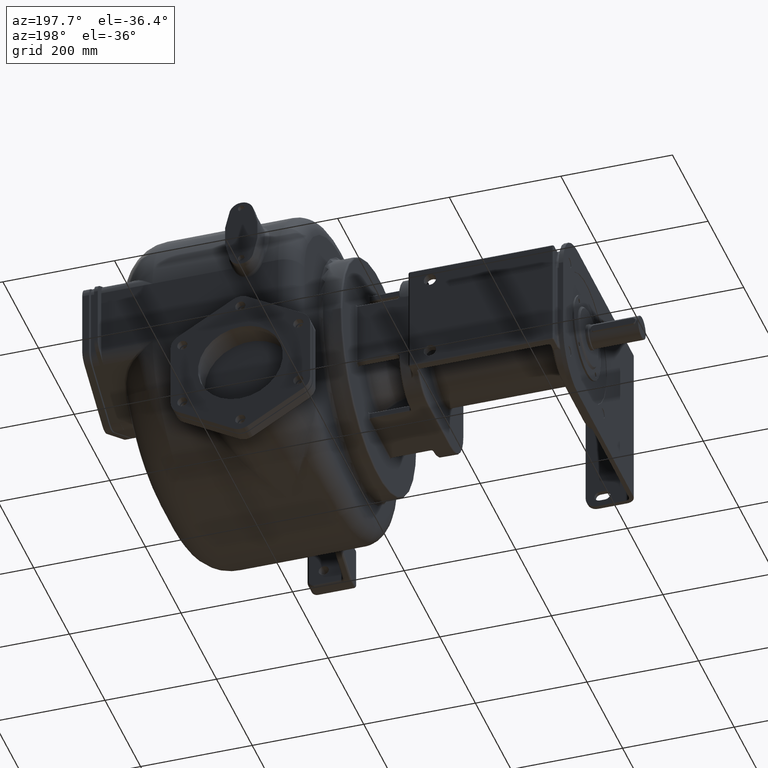
[diagram: clean part render]
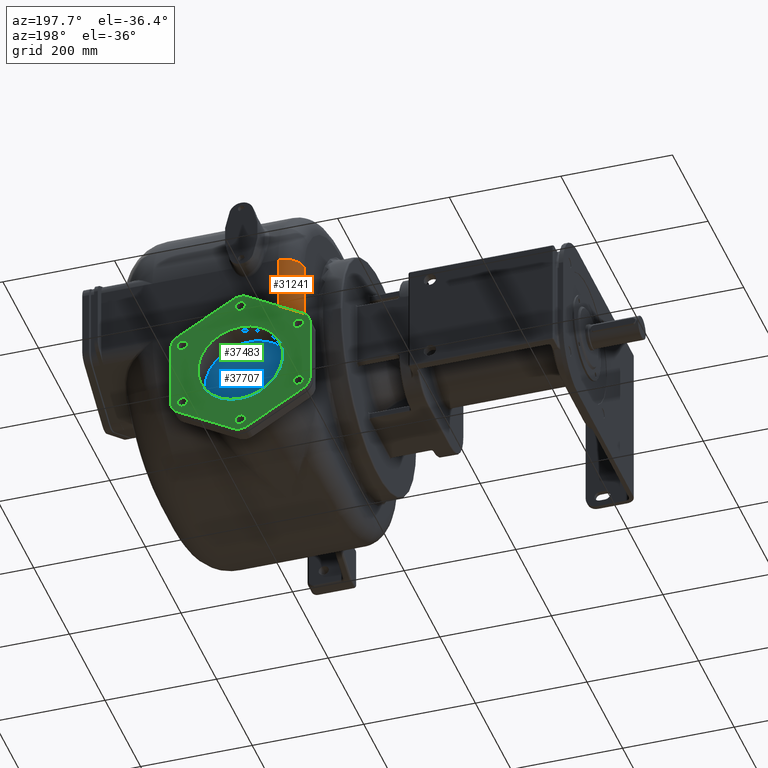
[diagram: same view with three faces highlighted in distinct colors, each labeled with its STEP entity id]
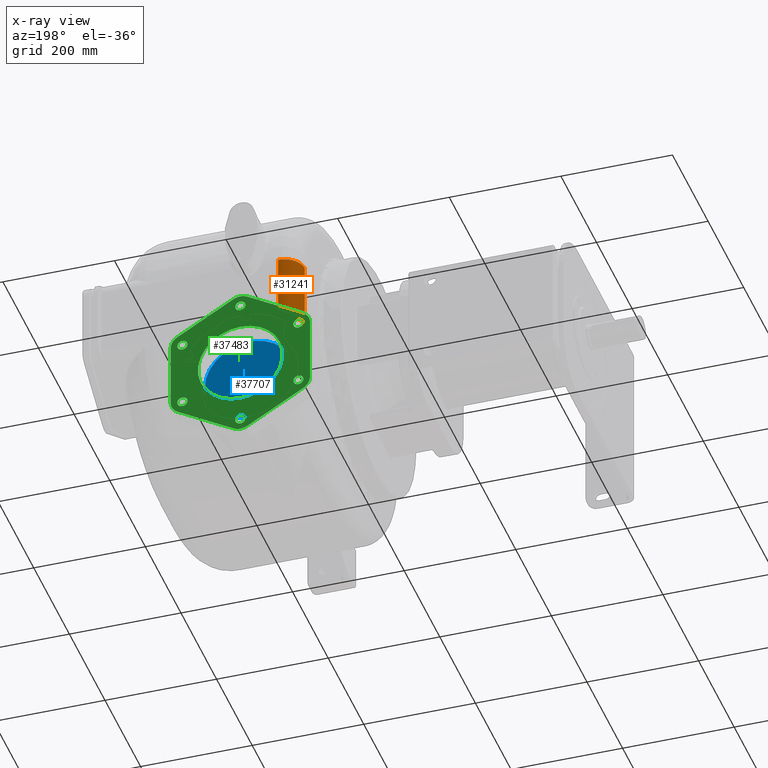
[diagram: x-ray of the same camera — body ghosted, the three highlighted faces saturated]
A machine part, auxiliary view with three faces highlighted in distinct colors.
The next image is the same camera in x-ray (body ghosted, the three faces saturated) — at least one of them is partly hidden behind the body in this view.
Their STEP definitions:

[orange] entity #31241 — the highlighted cylindrical surface (edge-blend (fillet) strip) has radius 36 mm, axis along (0, 0, -1).
#5984=CARTESIAN_POINT('',(-1.075706895218E2,6.099080928169E2,
-8.122009189057E1));
#5985=CARTESIAN_POINT('',(-1.077603667420E2,6.098945152202E2,
-8.134785436569E1));
#5986=CARTESIAN_POINT('',(-1.081398862236E2,6.098643268937E2,
-8.160343563808E1));
#5987=CARTESIAN_POINT('',(-1.087074904091E2,6.098100874647E2,
-8.198578602877E1));
#5988=CARTESIAN_POINT('',(-1.090851972030E2,6.097679763710E2,
-8.224018206872E1));
#5989=CARTESIAN_POINT('',(-1.092738153531E2,6.097454256796E2,
-8.236722963494E1));
#5991=CARTESIAN_POINT('',(-1.049999999999E2,6.099999907785E2,
-7.948849427768E1));
#5992=CARTESIAN_POINT('',(-1.052860164744E2,6.099999883422E2,
-7.968114918334E1));
#5993=CARTESIAN_POINT('',(-1.058578897467E2,6.099931890198E2,
-8.006634656761E1));
#5994=CARTESIAN_POINT('',(-1.067151210626E2,6.099625297640E2,
-8.064374551038E1));
#5995=CARTESIAN_POINT('',(-1.072854916578E2,6.099285071755E2,
-8.102798783214E1));
#5996=CARTESIAN_POINT('',(-1.075706895218E2,6.099080928169E2,
-8.122009189057E1));
#5998=CARTESIAN_POINT('',(-1.05E2,5.74E2,3.462177826491E1));
#5999=DIRECTION('',(0.E0,0.E0,-1.E0));
#6000=DIRECTION('',(-1.E0,0.E0,0.E0));
#6001=AXIS2_PLACEMENT_3D('',#5998,#5999,#6000);
#6003=CARTESIAN_POINT('',(-1.092738153531E2,6.097454256796E2,
-8.236722963494E1));
#6004=CARTESIAN_POINT('',(-1.094393539522E2,6.097256333466E2,
-8.247873117782E1));
#6005=CARTESIAN_POINT('',(-1.097701149173E2,6.096837352484E2,
-8.270736717730E1));
#6006=CARTESIAN_POINT('',(-1.102652447588E2,6.096140488140E2,
-8.306797422289E1));
#6007=CARTESIAN_POINT('',(-1.107579209623E2,6.095377101992E2,
-8.344590411304E1));
#6008=CARTESIAN_POINT('',(-1.112472067541E2,6.094549563511E2,
-8.384106918896E1));
#6009=CARTESIAN_POINT('',(-1.117317046381E2,6.093661480554E2,
-8.425295132230E1));
#6010=CARTESIAN_POINT('',(-1.122120317317E2,6.092713239852E2,
-8.468247538176E1));
#6011=CARTESIAN_POINT('',(-1.126904212140E2,6.091701173450E2,
-8.513243471239E1));
#6012=CARTESIAN_POINT('',(-1.131676022982E2,6.090623736746E2,
-8.560448353585E1));
#6013=CARTESIAN_POINT('',(-1.136432816468E2,6.089481540279E2,
-8.609928334032E1));
#6014=CARTESIAN_POINT('',(-1.139594046990E2,6.088676879272E2,
-8.644496920859E1));
#6015=CARTESIAN_POINT('',(-1.141171283358E2,6.088263977907E2,
-8.662177826491E1));
#6487=CARTESIAN_POINT('',(-1.141171282930E2,6.088263976272E2,
-8.662177826491E1));
#6501=CARTESIAN_POINT('',(-1.05E2,5.74E2,-8.662177826491E1));
#6502=DIRECTION('',(0.E0,0.E0,-1.E0));
#6503=DIRECTION('',(-1.E0,0.E0,0.E0));
#6504=AXIS2_PLACEMENT_3D('',#6501,#6502,#6503);
#6559=DIRECTION('',(0.E0,0.E0,-1.E0));
#6560=VECTOR('',#6559,1.212435565298E2);
#6561=CARTESIAN_POINT('',(-1.41E2,5.74E2,3.462177826491E1));
#6562=LINE('',#6561,#6560);
#10448=DIRECTION('',(9.913078026477E-13,-8.081202777860E-8,-1.E0));
#10449=VECTOR('',#10448,1.141102725419E2);
#10450=CARTESIAN_POINT('',(-1.05E2,6.1E2,3.462177826418E1));
#10451=LINE('',#10450,#10449);
#22591=CARTESIAN_POINT('',(-1.41E2,5.74E2,3.462177826491E1));
#22592=CARTESIAN_POINT('',(-1.41E2,5.74E2,-8.662177826491E1));
#22593=VERTEX_POINT('',#22591);
#22594=VERTEX_POINT('',#22592);
#22611=CARTESIAN_POINT('',(-1.05E2,6.1E2,3.462177826491E1));
#22612=VERTEX_POINT('',#22611);
#22970=VERTEX_POINT('',#5984);
#22971=VERTEX_POINT('',#5989);
#23129=CARTESIAN_POINT('',(-1.049999999999E2,6.099999907785E2,
-7.948849427768E1));
#23131=VERTEX_POINT('',#23129);
#23167=VERTEX_POINT('',#6487);
#31221=CARTESIAN_POINT('',(-1.05E2,5.74E2,3.652125293659E1));
#31222=DIRECTION('',(0.E0,0.E0,-1.E0));
#31223=DIRECTION('',(-1.E0,0.E0,0.E0));
#31224=AXIS2_PLACEMENT_3D('',#31221,#31222,#31223);
#31225=CYLINDRICAL_SURFACE('',#31224,3.6E1);
#31227=ORIENTED_EDGE('',*,*,#31226,.F.);
#31229=ORIENTED_EDGE('',*,*,#31228,.F.);
#31231=ORIENTED_EDGE('',*,*,#31230,.F.);
#31232=ORIENTED_EDGE('',*,*,#31211,.F.);
#31234=ORIENTED_EDGE('',*,*,#31233,.T.);
#31236=ORIENTED_EDGE('',*,*,#31235,.T.);
#31238=ORIENTED_EDGE('',*,*,#31237,.F.);
#31239=EDGE_LOOP('',(#31227,#31229,#31231,#31232,#31234,#31236,#31238));
#31240=FACE_OUTER_BOUND('',#31239,.F.);
#31241=ADVANCED_FACE('',(#31240),#31225,.T.);
#5990=B_SPLINE_CURVE_WITH_KNOTS('',3,(#5984,#5985,#5986,#5987,#5988,#5989),
.UNSPECIFIED.,.F.,.F.,(4,1,1,4),(0.E0,3.333333333333E-1,6.666666666667E-1,1.E0),
.UNSPECIFIED.);
#5997=B_SPLINE_CURVE_WITH_KNOTS('',3,(#5991,#5992,#5993,#5994,#5995,#5996),
.UNSPECIFIED.,.F.,.F.,(4,1,1,4),(0.E0,3.333333333333E-1,6.666666666667E-1,1.E0),
.UNSPECIFIED.);
#6002=CIRCLE('',#6001,3.6E1);
#6016=B_SPLINE_CURVE_WITH_KNOTS('',3,(#6003,#6004,#6005,#6006,#6007,#6008,#6009,
#6010,#6011,#6012,#6013,#6014,#6015),.UNSPECIFIED.,.F.,.F.,(4,1,1,1,1,1,1,1,1,1,
4),(0.E0,1.E-1,2.E-1,3.E-1,4.E-1,5.E-1,6.E-1,7.E-1,8.E-1,9.E-1,1.E0),
.UNSPECIFIED.);
#6505=CIRCLE('',#6504,3.6E1);
#31211=EDGE_CURVE('',#22593,#22612,#6002,.T.);
#31226=EDGE_CURVE('',#22970,#22971,#5990,.T.);
#31228=EDGE_CURVE('',#23131,#22970,#5997,.T.);
#31230=EDGE_CURVE('',#22612,#23131,#10451,.T.);
#31233=EDGE_CURVE('',#22593,#22594,#6562,.T.);
#31235=EDGE_CURVE('',#22594,#23167,#6505,.T.);
#31237=EDGE_CURVE('',#22971,#23167,#6016,.T.);

[blue] entity #37707 — the highlighted planar face has unit normal (0, 1, 0).
#12579=CARTESIAN_POINT('',(-5.E1,5.99E2,-1.99E2));
#12580=DIRECTION('',(0.E0,1.E0,0.E0));
#12581=DIRECTION('',(1.E0,0.E0,0.E0));
#12582=AXIS2_PLACEMENT_3D('',#12579,#12580,#12581);
#12584=CARTESIAN_POINT('',(-5.E1,5.99E2,-1.99E2));
#12585=DIRECTION('',(0.E0,1.E0,0.E0));
#12586=DIRECTION('',(-1.E0,0.E0,0.E0));
#12587=AXIS2_PLACEMENT_3D('',#12584,#12585,#12586);
#23112=CARTESIAN_POINT('',(3.E1,5.99E2,-1.99E2));
#23113=CARTESIAN_POINT('',(-1.3E2,5.99E2,-1.99E2));
#23114=VERTEX_POINT('',#23112);
#23115=VERTEX_POINT('',#23113);
#37698=CARTESIAN_POINT('',(-1.64E2,5.99E2,0.E0));
#37699=DIRECTION('',(0.E0,1.E0,0.E0));
#37700=DIRECTION('',(1.E0,0.E0,0.E0));
#37701=AXIS2_PLACEMENT_3D('',#37698,#37699,#37700);
#37702=PLANE('',#37701);
#37703=ORIENTED_EDGE('',*,*,#37670,.F.);
#37704=ORIENTED_EDGE('',*,*,#37690,.F.);
#37705=EDGE_LOOP('',(#37703,#37704));
#37706=FACE_OUTER_BOUND('',#37705,.F.);
#37707=ADVANCED_FACE('',(#37706),#37702,.T.);
#12583=CIRCLE('',#12582,8.E1);
#12588=CIRCLE('',#12587,8.E1);
#37670=EDGE_CURVE('',#23114,#23115,#12583,.T.);
#37690=EDGE_CURVE('',#23115,#23114,#12588,.T.);

[green] entity #37483 — the highlighted planar face has unit normal (0, 1, 0).
#12357=CARTESIAN_POINT('',(5.E1,6.5E2,-1.412649730810E2));
#12358=DIRECTION('',(0.E0,1.E0,0.E0));
#12359=DIRECTION('',(5.E-1,0.E0,8.660254037844E-1));
#12360=AXIS2_PLACEMENT_3D('',#12357,#12358,#12359);
#12362=DIRECTION('',(-8.660254037844E-1,0.E0,5.E-1));
#12363=VECTOR('',#12362,1.154700538379E2);
#12364=CARTESIAN_POINT('',(6.25E1,6.5E2,-1.196143379864E2));
#12365=LINE('',#12364,#12363);
#12366=CARTESIAN_POINT('',(-5.E1,6.5E2,-8.352994616208E1));
#12367=DIRECTION('',(0.E0,1.E0,0.E0));
#12368=DIRECTION('',(-5.E-1,0.E0,8.660254037844E-1));
#12369=AXIS2_PLACEMENT_3D('',#12366,#12367,#12368);
#12371=DIRECTION('',(-8.660254037844E-1,0.E0,-5.E-1));
#12372=VECTOR('',#12371,1.154700538379E2);
#12373=CARTESIAN_POINT('',(-6.25E1,6.5E2,-6.187931106746E1));
#12374=LINE('',#12373,#12372);
#12375=CARTESIAN_POINT('',(-1.5E2,6.5E2,-1.412649730810E2));
#12376=DIRECTION('',(0.E0,1.E0,0.E0));
#12377=DIRECTION('',(-1.E0,0.E0,0.E0));
#12378=AXIS2_PLACEMENT_3D('',#12375,#12376,#12377);
#12380=DIRECTION('',(0.E0,0.E0,-1.E0));
#12381=VECTOR('',#12380,1.154700538379E2);
#12382=CARTESIAN_POINT('',(-1.75E2,6.5E2,-1.412649730810E2));
#12383=LINE('',#12382,#12381);
#12384=CARTESIAN_POINT('',(-1.5E2,6.5E2,-2.567350269190E2));
#12385=DIRECTION('',(0.E0,1.E0,0.E0));
#12386=DIRECTION('',(-5.E-1,0.E0,-8.660254037844E-1));
#12387=AXIS2_PLACEMENT_3D('',#12384,#12385,#12386);
#12389=DIRECTION('',(8.660254037844E-1,0.E0,-5.E-1));
#12390=VECTOR('',#12389,1.154700538379E2);
#12391=CARTESIAN_POINT('',(-1.625E2,6.5E2,-2.783856620136E2));
#12392=LINE('',#12391,#12390);
#12393=CARTESIAN_POINT('',(-5.E1,6.5E2,-3.144700538379E2));
#12394=DIRECTION('',(0.E0,1.E0,0.E0));
#12395=DIRECTION('',(5.E-1,0.E0,-8.660254037844E-1));
#12396=AXIS2_PLACEMENT_3D('',#12393,#12394,#12395);
#12398=DIRECTION('',(8.660254037844E-1,0.E0,5.E-1));
#12399=VECTOR('',#12398,1.154700538379E2);
#12400=CARTESIAN_POINT('',(-3.75E1,6.5E2,-3.361206889325E2));
#12401=LINE('',#12400,#12399);
#12402=CARTESIAN_POINT('',(5.E1,6.5E2,-2.567350269190E2));
#12403=DIRECTION('',(0.E0,1.E0,0.E0));
#12404=DIRECTION('',(1.E0,0.E0,0.E0));
#12405=AXIS2_PLACEMENT_3D('',#12402,#12403,#12404);
#12407=DIRECTION('',(0.E0,0.E0,1.E0));
#12408=VECTOR('',#12407,1.154700538379E2);
#12409=CARTESIAN_POINT('',(7.5E1,6.5E2,-2.567350269190E2));
#12410=LINE('',#12409,#12408);
#12411=CARTESIAN_POINT('',(-5.E1,6.5E2,-1.99E2));
#12412=DIRECTION('',(0.E0,-1.E0,0.E0));
#12413=DIRECTION('',(0.E0,0.E0,-1.E0));
#12414=AXIS2_PLACEMENT_3D('',#12411,#12412,#12413);
#12416=CARTESIAN_POINT('',(-5.E1,6.5E2,-1.99E2));
#12417=DIRECTION('',(0.E0,-1.E0,0.E0));
#12418=DIRECTION('',(0.E0,0.E0,1.E0));
#12419=AXIS2_PLACEMENT_3D('',#12416,#12417,#12418);
#12421=CARTESIAN_POINT('',(-1.539230484541E2,6.5E2,-2.59E2));
#12422=DIRECTION('',(0.E0,1.E0,0.E0));
#12423=DIRECTION('',(0.E0,0.E0,1.E0));
#12424=AXIS2_PLACEMENT_3D('',#12421,#12422,#12423);
#12426=CARTESIAN_POINT('',(-1.539230484541E2,6.5E2,-2.59E2));
#12427=DIRECTION('',(0.E0,1.E0,0.E0));
#12428=DIRECTION('',(0.E0,0.E0,-1.E0));
#12429=AXIS2_PLACEMENT_3D('',#12426,#12427,#12428);
#12431=CARTESIAN_POINT('',(-5.E1,6.5E2,-3.19E2));
#12432=DIRECTION('',(0.E0,1.E0,0.E0));
#12433=DIRECTION('',(-8.660254037844E-1,0.E0,5.E-1));
#12434=AXIS2_PLACEMENT_3D('',#12431,#12432,#12433);
#12436=CARTESIAN_POINT('',(-5.E1,6.5E2,-3.19E2));
#12437=DIRECTION('',(0.E0,1.E0,0.E0));
#12438=DIRECTION('',(8.660254037844E-1,0.E0,-5.E-1));
#12439=AXIS2_PLACEMENT_3D('',#12436,#12437,#12438);
#12441=CARTESIAN_POINT('',(5.392304845413E1,6.5E2,-2.59E2));
#12442=DIRECTION('',(0.E0,1.E0,0.E0));
#12443=DIRECTION('',(-8.660254037844E-1,0.E0,-5.E-1));
#12444=AXIS2_PLACEMENT_3D('',#12441,#12442,#12443);
#12446=CARTESIAN_POINT('',(5.392304845413E1,6.5E2,-2.59E2));
#12447=DIRECTION('',(0.E0,1.E0,0.E0));
#12448=DIRECTION('',(8.660254037844E-1,0.E0,5.E-1));
#12449=AXIS2_PLACEMENT_3D('',#12446,#12447,#12448);
#12451=CARTESIAN_POINT('',(5.392304845413E1,6.5E2,-1.39E2));
#12452=DIRECTION('',(0.E0,1.E0,0.E0));
#12453=DIRECTION('',(0.E0,0.E0,-1.E0));
#12454=AXIS2_PLACEMENT_3D('',#12451,#12452,#12453);
#12456=CARTESIAN_POINT('',(5.392304845413E1,6.5E2,-1.39E2));
#12457=DIRECTION('',(0.E0,1.E0,0.E0));
#12458=DIRECTION('',(0.E0,0.E0,1.E0));
#12459=AXIS2_PLACEMENT_3D('',#12456,#12457,#12458);
#12461=CARTESIAN_POINT('',(-5.E1,6.5E2,-7.9E1));
#12462=DIRECTION('',(0.E0,1.E0,0.E0));
#12463=DIRECTION('',(8.660254037844E-1,0.E0,-5.E-1));
#12464=AXIS2_PLACEMENT_3D('',#12461,#12462,#12463);
#12466=CARTESIAN_POINT('',(-5.E1,6.5E2,-7.9E1));
#12467=DIRECTION('',(0.E0,1.E0,0.E0));
#12468=DIRECTION('',(-8.660254037844E-1,0.E0,5.E-1));
#12469=AXIS2_PLACEMENT_3D('',#12466,#12467,#12468);
#12471=CARTESIAN_POINT('',(-1.539230484541E2,6.5E2,-1.39E2));
#12472=DIRECTION('',(0.E0,1.E0,0.E0));
#12473=DIRECTION('',(8.660254037844E-1,0.E0,5.E-1));
#12474=AXIS2_PLACEMENT_3D('',#12471,#12472,#12473);
#12476=CARTESIAN_POINT('',(-1.539230484541E2,6.5E2,-1.39E2));
#12477=DIRECTION('',(0.E0,1.E0,0.E0));
#12478=DIRECTION('',(-8.660254037844E-1,0.E0,-5.E-1));
#12479=AXIS2_PLACEMENT_3D('',#12476,#12477,#12478);
#23181=CARTESIAN_POINT('',(-1.539230484541E2,6.5E2,-2.5E2));
#23183=VERTEX_POINT('',#23181);
#23185=CARTESIAN_POINT('',(-1.539230484541E2,6.5E2,-2.68E2));
#23187=VERTEX_POINT('',#23185);
#23189=CARTESIAN_POINT('',(-5.779422863406E1,6.5E2,-3.145E2));
#23191=VERTEX_POINT('',#23189);
#23193=CARTESIAN_POINT('',(-4.220577136594E1,6.5E2,-3.235E2));
#23195=VERTEX_POINT('',#23193);
#23197=CARTESIAN_POINT('',(4.612881982007E1,6.5E2,-2.635E2));
#23199=VERTEX_POINT('',#23197);
#23201=CARTESIAN_POINT('',(6.171727708819E1,6.5E2,-2.545E2));
#23203=VERTEX_POINT('',#23201);
#23205=CARTESIAN_POINT('',(5.392304845413E1,6.5E2,-1.48E2));
#23207=VERTEX_POINT('',#23205);
#23209=CARTESIAN_POINT('',(5.392304845413E1,6.5E2,-1.3E2));
#23211=VERTEX_POINT('',#23209);
#23213=CARTESIAN_POINT('',(-4.220577136594E1,6.5E2,-8.35E1));
#23215=VERTEX_POINT('',#23213);
#23217=CARTESIAN_POINT('',(-5.779422863406E1,6.5E2,-7.45E1));
#23219=VERTEX_POINT('',#23217);
#23221=CARTESIAN_POINT('',(-1.461288198201E2,6.5E2,-1.345E2));
#23223=VERTEX_POINT('',#23221);
#23225=CARTESIAN_POINT('',(-1.617172770882E2,6.5E2,-1.435E2));
#23227=VERTEX_POINT('',#23225);
#23232=CARTESIAN_POINT('',(-5.E1,6.5E2,-2.75E2));
#23233=CARTESIAN_POINT('',(-5.E1,6.5E2,-1.23E2));
#23234=VERTEX_POINT('',#23232);
#23235=VERTEX_POINT('',#23233);
#23236=CARTESIAN_POINT('',(6.25E1,6.5E2,-1.196143379864E2));
#23237=CARTESIAN_POINT('',(7.5E1,6.5E2,-1.412649730810E2));
#23238=VERTEX_POINT('',#23236);
#23239=VERTEX_POINT('',#23237);
#23244=CARTESIAN_POINT('',(-6.25E1,6.5E2,-6.187931106746E1));
#23245=CARTESIAN_POINT('',(-3.75E1,6.5E2,-6.187931106746E1));
#23246=VERTEX_POINT('',#23244);
#23247=VERTEX_POINT('',#23245);
#23252=CARTESIAN_POINT('',(-1.75E2,6.5E2,-1.412649730810E2));
#23253=CARTESIAN_POINT('',(-1.625E2,6.5E2,-1.196143379864E2));
#23254=VERTEX_POINT('',#23252);
#23255=VERTEX_POINT('',#23253);
#23260=CARTESIAN_POINT('',(-1.625E2,6.5E2,-2.783856620136E2));
#23261=CARTESIAN_POINT('',(-1.75E2,6.5E2,-2.567350269190E2));
#23262=VERTEX_POINT('',#23260);
#23263=VERTEX_POINT('',#23261);
#23268=CARTESIAN_POINT('',(-3.75E1,6.5E2,-3.361206889325E2));
#23269=CARTESIAN_POINT('',(-6.25E1,6.5E2,-3.361206889325E2));
#23270=VERTEX_POINT('',#23268);
#23271=VERTEX_POINT('',#23269);
#23276=CARTESIAN_POINT('',(7.5E1,6.5E2,-2.567350269190E2));
#23277=CARTESIAN_POINT('',(6.25E1,6.5E2,-2.783856620136E2));
#23278=VERTEX_POINT('',#23276);
#23279=VERTEX_POINT('',#23277);
#37411=CARTESIAN_POINT('',(-5.E1,6.5E2,-1.99E2));
#37412=DIRECTION('',(0.E0,1.E0,0.E0));
#37413=DIRECTION('',(0.E0,0.E0,-1.E0));
#37414=AXIS2_PLACEMENT_3D('',#37411,#37412,#37413);
#37415=PLANE('',#37414);
#37416=ORIENTED_EDGE('',*,*,#37401,.F.);
#37418=ORIENTED_EDGE('',*,*,#37417,.T.);
#37420=ORIENTED_EDGE('',*,*,#37419,.F.);
#37422=ORIENTED_EDGE('',*,*,#37421,.T.);
#37424=ORIENTED_EDGE('',*,*,#37423,.F.);
#37426=ORIENTED_EDGE('',*,*,#37425,.T.);
#37428=ORIENTED_EDGE('',*,*,#37427,.F.);
#37430=ORIENTED_EDGE('',*,*,#37429,.T.);
#37432=ORIENTED_EDGE('',*,*,#37431,.F.);
#37434=ORIENTED_EDGE('',*,*,#37433,.T.);
#37436=ORIENTED_EDGE('',*,*,#37435,.F.);
#37438=ORIENTED_EDGE('',*,*,#37437,.T.);
#37439=EDGE_LOOP('',(#37416,#37418,#37420,#37422,#37424,#37426,#37428,#37430,
#37432,#37434,#37436,#37438));
#37440=FACE_OUTER_BOUND('',#37439,.F.);
#37442=ORIENTED_EDGE('',*,*,#37441,.F.);
#37444=ORIENTED_EDGE('',*,*,#37443,.F.);
#37445=EDGE_LOOP('',(#37442,#37444));
#37446=FACE_BOUND('',#37445,.F.);
#37448=ORIENTED_EDGE('',*,*,#37447,.T.);
#37450=ORIENTED_EDGE('',*,*,#37449,.T.);
#37451=EDGE_LOOP('',(#37448,#37450));
#37452=FACE_BOUND('',#37451,.F.);
#37454=ORIENTED_EDGE('',*,*,#37453,.T.);
#37456=ORIENTED_EDGE('',*,*,#37455,.T.);
#37457=EDGE_LOOP('',(#37454,#37456));
#37458=FACE_BOUND('',#37457,.F.);
#37460=ORIENTED_EDGE('',*,*,#37459,.T.);
#37462=ORIENTED_EDGE('',*,*,#37461,.T.);
#37463=EDGE_LOOP('',(#37460,#37462));
#37464=FACE_BOUND('',#37463,.F.);
#37466=ORIENTED_EDGE('',*,*,#37465,.T.);
#37468=ORIENTED_EDGE('',*,*,#37467,.T.);
#37469=EDGE_LOOP('',(#37466,#37468));
#37470=FACE_BOUND('',#37469,.F.);
#37472=ORIENTED_EDGE('',*,*,#37471,.T.);
#37474=ORIENTED_EDGE('',*,*,#37473,.T.);
#37475=EDGE_LOOP('',(#37472,#37474));
#37476=FACE_BOUND('',#37475,.F.);
#37478=ORIENTED_EDGE('',*,*,#37477,.T.);
#37480=ORIENTED_EDGE('',*,*,#37479,.T.);
#37481=EDGE_LOOP('',(#37478,#37480));
#37482=FACE_BOUND('',#37481,.F.);
#37483=ADVANCED_FACE('',(#37440,#37446,#37452,#37458,#37464,#37470,#37476,
#37482),#37415,.T.);
#12361=CIRCLE('',#12360,2.5E1);
#12370=CIRCLE('',#12369,2.5E1);
#12379=CIRCLE('',#12378,2.5E1);
#12388=CIRCLE('',#12387,2.5E1);
#12397=CIRCLE('',#12396,2.5E1);
#12406=CIRCLE('',#12405,2.5E1);
#12415=CIRCLE('',#12414,7.6E1);
#12420=CIRCLE('',#12419,7.6E1);
#12425=CIRCLE('',#12424,9.E0);
#12430=CIRCLE('',#12429,9.E0);
#12435=CIRCLE('',#12434,9.E0);
#12440=CIRCLE('',#12439,9.E0);
#12445=CIRCLE('',#12444,9.E0);
#12450=CIRCLE('',#12449,9.E0);
#12455=CIRCLE('',#12454,9.E0);
#12460=CIRCLE('',#12459,9.E0);
#12465=CIRCLE('',#12464,9.E0);
#12470=CIRCLE('',#12469,9.E0);
#12475=CIRCLE('',#12474,9.E0);
#12480=CIRCLE('',#12479,9.E0);
#37401=EDGE_CURVE('',#23238,#23239,#12361,.T.);
#37417=EDGE_CURVE('',#23238,#23247,#12365,.T.);
#37419=EDGE_CURVE('',#23246,#23247,#12370,.T.);
#37421=EDGE_CURVE('',#23246,#23255,#12374,.T.);
#37423=EDGE_CURVE('',#23254,#23255,#12379,.T.);
#37425=EDGE_CURVE('',#23254,#23263,#12383,.T.);
#37427=EDGE_CURVE('',#23262,#23263,#12388,.T.);
#37429=EDGE_CURVE('',#23262,#23271,#12392,.T.);
#37431=EDGE_CURVE('',#23270,#23271,#12397,.T.);
#37433=EDGE_CURVE('',#23270,#23279,#12401,.T.);
#37435=EDGE_CURVE('',#23278,#23279,#12406,.T.);
#37437=EDGE_CURVE('',#23278,#23239,#12410,.T.);
#37441=EDGE_CURVE('',#23234,#23235,#12415,.T.);
#37443=EDGE_CURVE('',#23235,#23234,#12420,.T.);
#37447=EDGE_CURVE('',#23183,#23187,#12425,.T.);
#37449=EDGE_CURVE('',#23187,#23183,#12430,.T.);
#37453=EDGE_CURVE('',#23191,#23195,#12435,.T.);
#37455=EDGE_CURVE('',#23195,#23191,#12440,.T.);
#37459=EDGE_CURVE('',#23199,#23203,#12445,.T.);
#37461=EDGE_CURVE('',#23203,#23199,#12450,.T.);
#37465=EDGE_CURVE('',#23207,#23211,#12455,.T.);
#37467=EDGE_CURVE('',#23211,#23207,#12460,.T.);
#37471=EDGE_CURVE('',#23215,#23219,#12465,.T.);
#37473=EDGE_CURVE('',#23219,#23215,#12470,.T.);
#37477=EDGE_CURVE('',#23223,#23227,#12475,.T.);
#37479=EDGE_CURVE('',#23227,#23223,#12480,.T.);